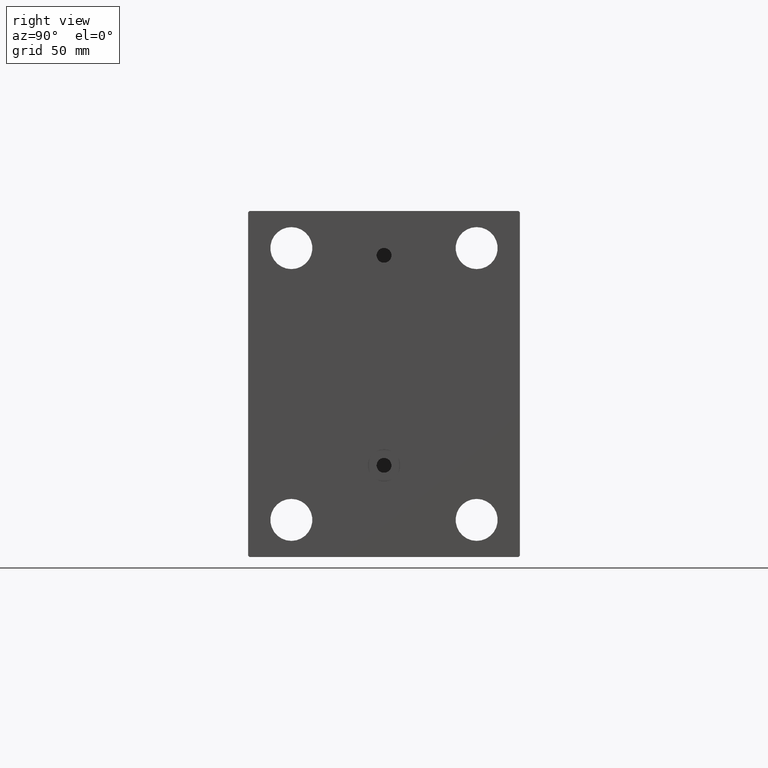
[diagram: clean part render]
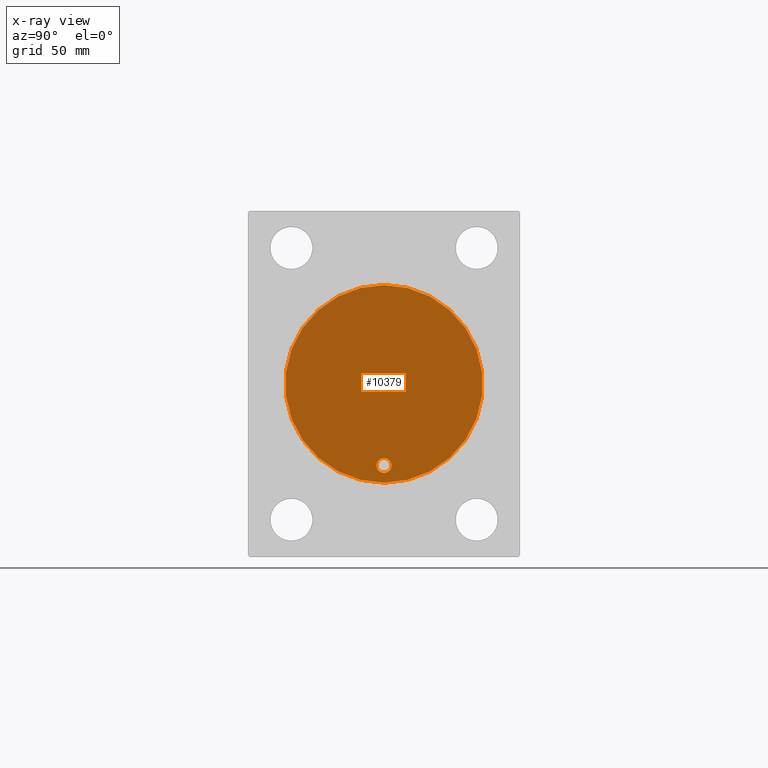
[diagram: x-ray — body ghosted, one internal face saturated and labeled with its STEP entity id]
A machine part, right view, then the same camera in x-ray: the body is ghosted and one INTERNAL B-rep face — a face not visible from any outside direction — is saturated and labeled: STEP entity #10379.
In plain terms, the highlighted planar face has unit normal (-1, 0, 0).
Its self-contained STEP definition (entity closure, byte-faithful):
#34 = FACE_BOUND ( 'NONE', #9368, .T. ) ;
#422 = EDGE_CURVE ( 'NONE', #26414, #18600, #30380, .T. ) ;
#1620 = CARTESIAN_POINT ( 'NONE',  ( 51.00000000000000000, 0.000000000000000000, 0.000000000000000000 ) ) ;
#2332 = CARTESIAN_POINT ( 'NONE',  ( 51.00000000000000000, 0.000000000000000000, 40.00000000000000000 ) ) ;
#4850 = AXIS2_PLACEMENT_3D ( 'NONE', #1620, #16022, #30436 ) ;
#4892 = ORIENTED_EDGE ( 'NONE', *, *, #14929, .F. ) ;
#7993 = EDGE_LOOP ( 'NONE', ( #23966, #29356 ) ) ;
#8518 = EDGE_CURVE ( 'NONE', #12791, #27701, #25993, .T. ) ;
#9124 = AXIS2_PLACEMENT_3D ( 'NONE', #26232, #40611, #22677 ) ;
#9368 = EDGE_LOOP ( 'NONE', ( #38371, #4892 ) ) ;
#10193 = FACE_OUTER_BOUND ( 'NONE', #7993, .T. ) ;
#10379 = ADVANCED_FACE ( 'NONE', ( #34, #10193 ), #14433, .T. ) ;
#12791 = VERTEX_POINT ( 'NONE', #2332 ) ;
#13458 = DIRECTION ( 'NONE',  ( 0.000000000000000000, 0.000000000000000000, 1.000000000000000000 ) ) ;
#14433 = PLANE ( 'NONE',  #24511 ) ;
#14929 = EDGE_CURVE ( 'NONE', #18600, #26414, #37896, .T. ) ;
#15912 = CIRCLE ( 'NONE', #9124, 40.00000000000000000 ) ;
#16022 = DIRECTION ( 'NONE',  ( -1.000000000000000000, 0.000000000000000000, 0.000000000000000000 ) ) ;
#17016 = CARTESIAN_POINT ( 'NONE',  ( 51.00000000000000000, 4.041334437186266200E-15, -33.00000000000000000 ) ) ;
#18600 = VERTEX_POINT ( 'NONE', #31781 ) ;
#19225 = DIRECTION ( 'NONE',  ( -1.000000000000000000, 0.000000000000000000, 0.000000000000000000 ) ) ;
#22677 = DIRECTION ( 'NONE',  ( 0.000000000000000000, 0.000000000000000000, 1.000000000000000000 ) ) ;
#23966 = ORIENTED_EDGE ( 'NONE', *, *, #8518, .T. ) ;
#24511 = AXIS2_PLACEMENT_3D ( 'NONE', #39466, #31688, #32617 ) ;
#25207 = CARTESIAN_POINT ( 'NONE',  ( 51.00000000000000000, 4.041334437186266200E-15, -33.00000000000000000 ) ) ;
#25993 = CIRCLE ( 'NONE', #4850, 40.00000000000000000 ) ;
#26232 = CARTESIAN_POINT ( 'NONE',  ( 51.00000000000000000, 0.000000000000000000, 0.000000000000000000 ) ) ;
#26414 = VERTEX_POINT ( 'NONE', #46357 ) ;
#27400 = AXIS2_PLACEMENT_3D ( 'NONE', #17016, #31412, #13458 ) ;
#27701 = VERTEX_POINT ( 'NONE', #34588 ) ;
#29356 = ORIENTED_EDGE ( 'NONE', *, *, #40646, .T. ) ;
#30380 = CIRCLE ( 'NONE', #27400, 3.000000000000002665 ) ;
#30436 = DIRECTION ( 'NONE',  ( 0.000000000000000000, 0.000000000000000000, 1.000000000000000000 ) ) ;
#31412 = DIRECTION ( 'NONE',  ( -1.000000000000000000, 0.000000000000000000, 0.000000000000000000 ) ) ;
#31688 = DIRECTION ( 'NONE',  ( -1.000000000000000000, 0.000000000000000000, 0.000000000000000000 ) ) ;
#31781 = CARTESIAN_POINT ( 'NONE',  ( 51.00000000000000000, 4.408728476930471644E-15, -30.00000000000000000 ) ) ;
#32617 = DIRECTION ( 'NONE',  ( 0.000000000000000000, 0.000000000000000000, 1.000000000000000000 ) ) ;
#34588 = CARTESIAN_POINT ( 'NONE',  ( 51.00000000000000000, 4.898587196589413026E-15, -40.00000000000000000 ) ) ;
#37896 = CIRCLE ( 'NONE', #40144, 3.000000000000002665 ) ;
#38371 = ORIENTED_EDGE ( 'NONE', *, *, #422, .F. ) ;
#39362 = DIRECTION ( 'NONE',  ( 0.000000000000000000, 0.000000000000000000, 1.000000000000000000 ) ) ;
#39466 = CARTESIAN_POINT ( 'NONE',  ( 51.00000000000000000, 0.000000000000000000, 0.000000000000000000 ) ) ;
#40144 = AXIS2_PLACEMENT_3D ( 'NONE', #25207, #19225, #39362 ) ;
#40611 = DIRECTION ( 'NONE',  ( -1.000000000000000000, 0.000000000000000000, 0.000000000000000000 ) ) ;
#40646 = EDGE_CURVE ( 'NONE', #27701, #12791, #15912, .T. ) ;
#46357 = CARTESIAN_POINT ( 'NONE',  ( 51.00000000000000000, 4.041334437186266200E-15, -36.00000000000000711 ) ) ;